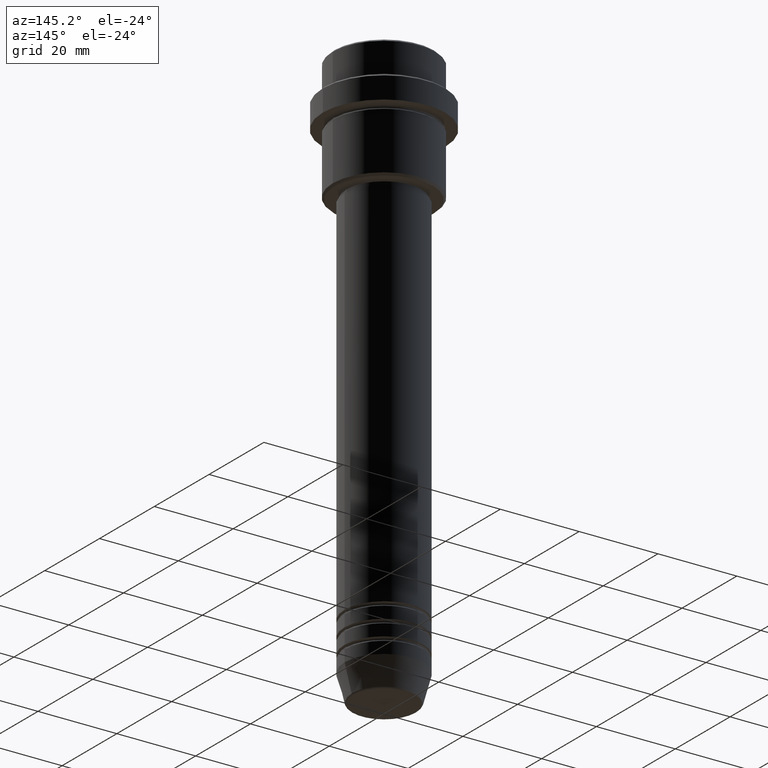
[diagram: clean part render]
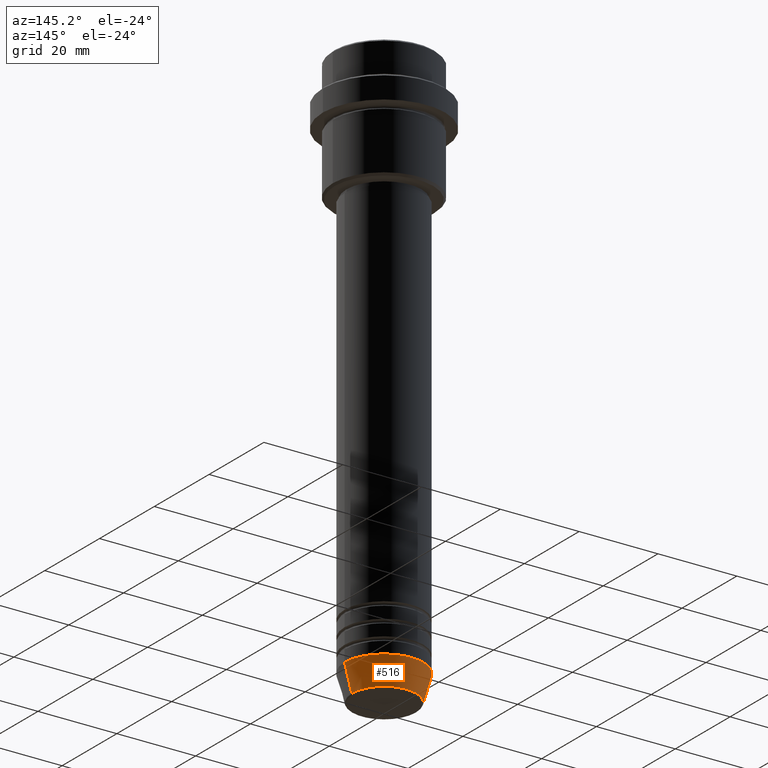
[diagram: same view with one face highlighted and labeled with its STEP entity id]
A machine part, auxiliary view. The second image highlights one B-rep face of the part: STEP entity #516.
In plain terms, the highlighted conical surface has half-angle 15 deg.
Its self-contained STEP definition (entity closure, byte-faithful):
#33 = CARTESIAN_POINT ( 'NONE',  ( 0.000000000000000000, 0.000000000000000000, -145.6294095225512706 ) ) ;
#47 = EDGE_CURVE ( 'NONE', #216, #403, #1302, .T. ) ;
#141 = DIRECTION ( 'NONE',  ( 1.000000000000000000, 0.000000000000000000, 0.000000000000000000 ) ) ;
#216 = VERTEX_POINT ( 'NONE', #592 ) ;
#245 = DIRECTION ( 'NONE',  ( -0.000000000000000000, -0.000000000000000000, 1.000000000000000000 ) ) ;
#256 = CARTESIAN_POINT ( 'NONE',  ( 10.00000000000000000, 0.000000000000000000, -139.0000000000000000 ) ) ;
#294 = AXIS2_PLACEMENT_3D ( 'NONE', #366, #383, #1256 ) ;
#297 = VECTOR ( 'NONE', #676, 1000.000000000000114 ) ;
#309 = VERTEX_POINT ( 'NONE', #887 ) ;
#325 = ORIENTED_EDGE ( 'NONE', *, *, #388, .T. ) ;
#327 = CIRCLE ( 'NONE', #1153, 8.223655072137189492 ) ;
#333 = CARTESIAN_POINT ( 'NONE',  ( 8.223655072137189492, 0.000000000000000000, -145.6294095225512706 ) ) ;
#348 = VERTEX_POINT ( 'NONE', #333 ) ;
#362 = LINE ( 'NONE', #256, #297 ) ;
#365 = CARTESIAN_POINT ( 'NONE',  ( -10.00000000000000000, 1.224646799147353256E-15, -139.0000000000000000 ) ) ;
#366 = CARTESIAN_POINT ( 'NONE',  ( 0.000000000000000000, 0.000000000000000000, -139.0000000000000000 ) ) ;
#383 = DIRECTION ( 'NONE',  ( -0.000000000000000000, -0.000000000000000000, 1.000000000000000000 ) ) ;
#388 = EDGE_CURVE ( 'NONE', #309, #403, #1209, .T. ) ;
#403 = VERTEX_POINT ( 'NONE', #365 ) ;
#469 = DIRECTION ( 'NONE',  ( 1.000000000000000000, 0.000000000000000000, 0.000000000000000000 ) ) ;
#516 = ADVANCED_FACE ( 'NONE', ( #894 ), #1196, .T. ) ;
#592 = CARTESIAN_POINT ( 'NONE',  ( 10.00000000000000000, 0.000000000000000000, -139.0000000000000000 ) ) ;
#657 = DIRECTION ( 'NONE',  ( -0.000000000000000000, -0.000000000000000000, 1.000000000000000000 ) ) ;
#676 = DIRECTION ( 'NONE',  ( 0.2588190451025214611, 0.000000000000000000, 0.9659258262890679791 ) ) ;
#775 = ORIENTED_EDGE ( 'NONE', *, *, #933, .F. ) ;
#789 = EDGE_LOOP ( 'NONE', ( #801, #325, #874, #775 ) ) ;
#801 = ORIENTED_EDGE ( 'NONE', *, *, #1297, .T. ) ;
#857 = CARTESIAN_POINT ( 'NONE',  ( -10.00000000000000000, 1.224646799147353256E-15, -139.0000000000000000 ) ) ;
#874 = ORIENTED_EDGE ( 'NONE', *, *, #47, .F. ) ;
#887 = CARTESIAN_POINT ( 'NONE',  ( -8.223655072137189492, 1.115877042642911856E-15, -145.6294095225512706 ) ) ;
#894 = FACE_OUTER_BOUND ( 'NONE', #789, .T. ) ;
#897 = AXIS2_PLACEMENT_3D ( 'NONE', #1337, #245, #469 ) ;
#933 = EDGE_CURVE ( 'NONE', #348, #216, #362, .T. ) ;
#975 = DIRECTION ( 'NONE',  ( -0.2588190451025214611, 3.169619151431774186E-17, 0.9659258262890679791 ) ) ;
#1153 = AXIS2_PLACEMENT_3D ( 'NONE', #33, #657, #141 ) ;
#1196 = CONICAL_SURFACE ( 'NONE', #897, 10.00000000000000000, 0.2617993877991502405 ) ;
#1209 = LINE ( 'NONE', #857, #1378 ) ;
#1256 = DIRECTION ( 'NONE',  ( 1.000000000000000000, 0.000000000000000000, 0.000000000000000000 ) ) ;
#1297 = EDGE_CURVE ( 'NONE', #348, #309, #327, .T. ) ;
#1302 = CIRCLE ( 'NONE', #294, 10.00000000000000000 ) ;
#1337 = CARTESIAN_POINT ( 'NONE',  ( 0.000000000000000000, 0.000000000000000000, -139.0000000000000000 ) ) ;
#1378 = VECTOR ( 'NONE', #975, 1000.000000000000114 ) ;